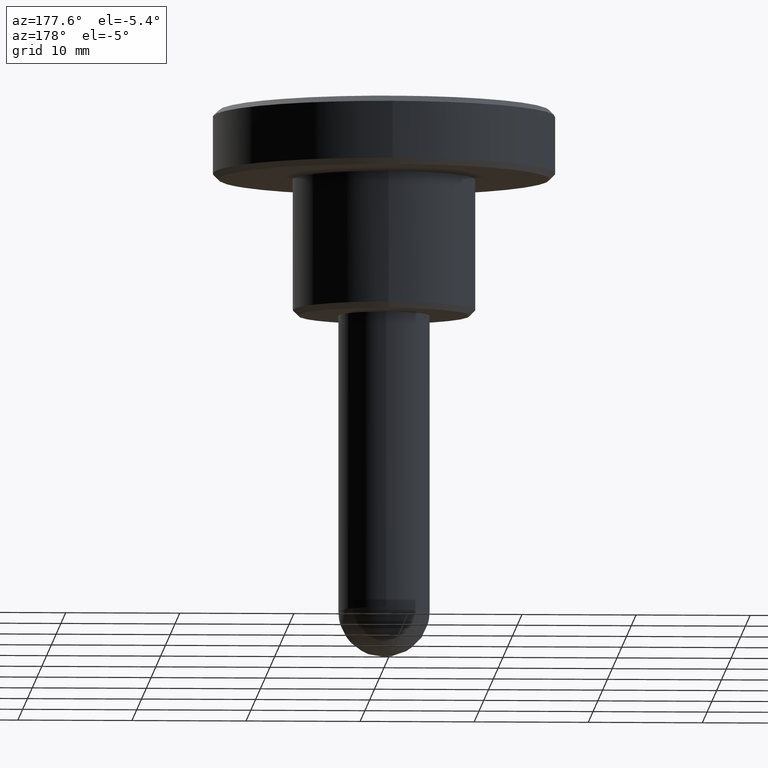
[diagram: clean part render]
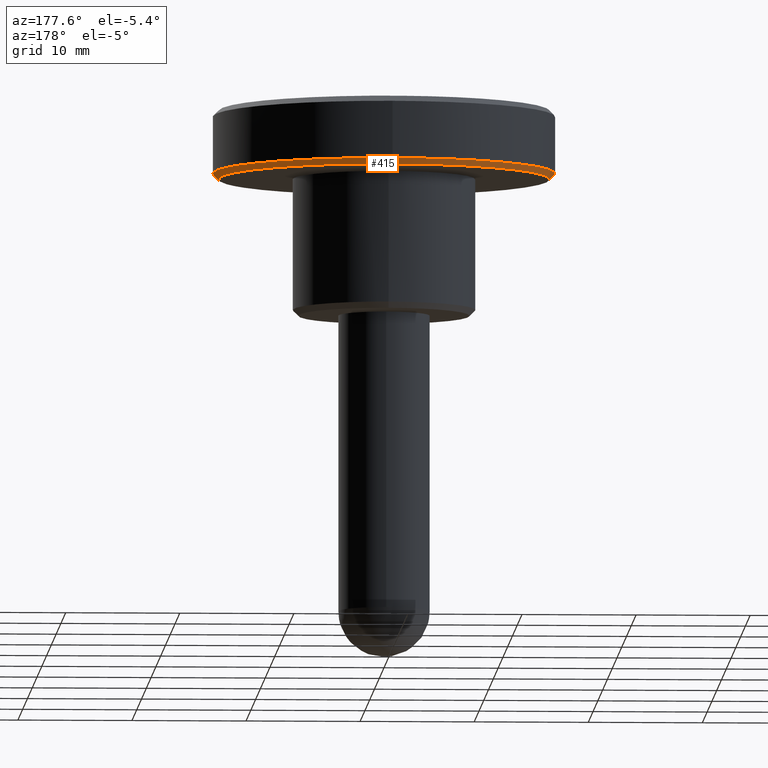
[diagram: same view with one face highlighted and labeled with its STEP entity id]
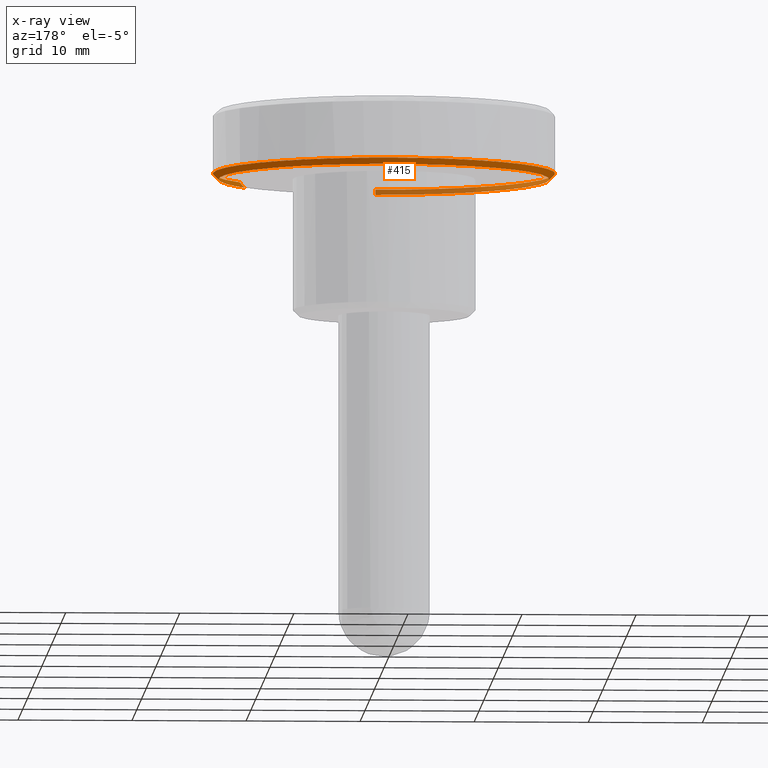
[diagram: x-ray of the same camera — body ghosted, the highlighted face saturated]
A machine part, auxiliary view. The second image highlights one B-rep face of the part: STEP entity #415.
The next image is the same camera in x-ray: the body ghosted, the highlighted face saturated — about 16% of this face is hidden behind the body in this view.
In plain terms, the highlighted face is a freeform B-spline surface patch.
Its self-contained STEP definition (entity closure, byte-faithful):
#260=CARTESIAN_POINT('',(11.863322807898196,-8.315601493915052,11.987500000000006));
#261=CARTESIAN_POINT('',(14.527452271915889,-4.514862863426098,11.987500000000006));
#262=CARTESIAN_POINT('',(14.486948360392180,0.126425683032692,11.987500000000001));
#263=CARTESIAN_POINT('',(14.360522677359487,14.613374043424866,11.987500000000001));
#264=CARTESIAN_POINT('',(-0.126425683032692,14.486948360392180,11.987500000000001));
#265=CARTESIAN_POINT('',(-14.613374043424866,14.360522677359487,11.987500000000001));
#266=CARTESIAN_POINT('',(-14.486948360392180,-0.126425683032692,11.987500000000001));
#267=CARTESIAN_POINT('',(-14.360522677359487,-14.613374043424866,11.987500000000001));
#268=CARTESIAN_POINT('',(0.126425683032692,-14.486948360392180,11.987500000000001));
#269=CARTESIAN_POINT('',(12.293483412731655,-8.617122764650015,12.512812500000011));
#270=CARTESIAN_POINT('',(15.054213429575364,-4.678570466390292,12.512812500000003));
#271=CARTESIAN_POINT('',(15.012240858101890,0.131009841211682,12.512812500000001));
#272=CARTESIAN_POINT('',(14.881231016890208,15.143250699313565,12.512812500000003));
#273=CARTESIAN_POINT('',(-0.131009841211682,15.012240858101890,12.512812500000001));
#274=CARTESIAN_POINT('',(-15.143250699313565,14.881231016890208,12.512812500000003));
#275=CARTESIAN_POINT('',(-15.012240858101890,-0.131009841211682,12.512812500000001));
#276=CARTESIAN_POINT('',(-14.881231016890208,-15.143250699313565,12.512812500000003));
#277=CARTESIAN_POINT('',(0.131009841211682,-15.012240858101890,12.512812500000001));
#285=(BOUNDED_SURFACE()B_SPLINE_SURFACE(2,1,((#260,#269),(#261,#270),(#262,#271),(#263,#272),(#264,#273),(#265,#274),(#266,#275),(#267,#276),(#268,#277)),.UNSPECIFIED.,.F.,.F.,.U.)B_SPLINE_SURFACE_WITH_KNOTS((3,2,2,2,3),(2,2),(0.0,9.949616874982967,34.823659062440392,59.697701249897797,84.571743437355209),(0.0,1.0),.UNSPECIFIED.)GEOMETRIC_REPRESENTATION_ITEM()RATIONAL_B_SPLINE_SURFACE(((0.859411254969543,0.859411254969543),(0.882842712474619,0.882842712474619),(1.0,1.0),(0.707106781186548,0.707106781186548),(1.0,1.0),(0.707106781186548,0.707106781186548),(1.0,1.0),(0.707106781186548,0.707106781186548),(1.0,1.0)))REPRESENTATION_ITEM('')SURFACE());
#286=CARTESIAN_POINT('',(14.500000000000000,0.0,12.0));
#287=VERTEX_POINT('',#286);
#288=CARTESIAN_POINT('',(11.873558634299050,-8.322776301083717,12.000000000000639));
#289=VERTEX_POINT('',#288);
#290=CARTESIAN_POINT('',(14.500000000000000,0.0,12.0));
#291=CARTESIAN_POINT('',(14.499999999999998,-4.575804806598277,11.999999999999998));
#292=CARTESIAN_POINT('',(11.873558634299053,-8.322776301083717,12.000000000000636));
#300=(BOUNDED_CURVE()B_SPLINE_CURVE(2,(#290,#291,#292),.UNSPECIFIED.,.F.,.U.)B_SPLINE_CURVE_WITH_KNOTS((3,3),(0.0,0.098673726203185),.UNSPECIFIED.)CURVE()GEOMETRIC_REPRESENTATION_ITEM()RATIONAL_B_SPLINE_CURVE((1.0,0.884396538880128,0.860049271925718))REPRESENTATION_ITEM(''));
#301=EDGE_CURVE('',#287,#289,#300,.T.);
#302=ORIENTED_EDGE('',*,*,#301,.F.);
#303=CARTESIAN_POINT('',(-14.500000000000000,0.0,12.0));
#304=VERTEX_POINT('',#303);
#305=CARTESIAN_POINT('',(-14.500000000000000,0.0,12.0));
#306=CARTESIAN_POINT('',(-14.500000000000000,14.500000000000000,12.0));
#307=CARTESIAN_POINT('',(0.0,14.500000000000000,12.0));
#308=CARTESIAN_POINT('',(14.500000000000000,14.500000000000000,12.0));
#309=CARTESIAN_POINT('',(14.500000000000000,0.0,12.0));
#317=(BOUNDED_CURVE()B_SPLINE_CURVE(2,(#305,#306,#307,#308,#309),.UNSPECIFIED.,.F.,.U.)B_SPLINE_CURVE_WITH_KNOTS((3,2,3),(0.500000000000000,0.750000000000000,1.0),.UNSPECIFIED.)CURVE()GEOMETRIC_REPRESENTATION_ITEM()RATIONAL_B_SPLINE_CURVE((1.0,0.707106781186548,1.0,0.707106781186548,1.0))REPRESENTATION_ITEM(''));
#318=EDGE_CURVE('',#304,#287,#317,.T.);
#319=ORIENTED_EDGE('',*,*,#318,.F.);
#320=CARTESIAN_POINT('',(0.126534764776619,-14.499447884436870,12.000000000006819));
#321=VERTEX_POINT('',#320);
#322=CARTESIAN_POINT('',(0.126534764776619,-14.499447884436869,12.000000000006825));
#323=CARTESIAN_POINT('',(0.063268586950314,-14.499999999999998,12.000000000000002));
#324=CARTESIAN_POINT('',(0.0,-14.500000000000000,12.0));
#325=CARTESIAN_POINT('',(-14.500000000000000,-14.500000000000000,12.0));
#326=CARTESIAN_POINT('',(-14.500000000000000,0.0,12.0));
#334=(BOUNDED_CURVE()B_SPLINE_CURVE(2,(#322,#323,#324,#325,#326),.UNSPECIFIED.,.F.,.U.)B_SPLINE_CURVE_WITH_KNOTS((3,2,3),(0.248460105663795,0.250000000000000,0.500000000000000),.UNSPECIFIED.)CURVE()GEOMETRIC_REPRESENTATION_ITEM()RATIONAL_B_SPLINE_CURVE((0.996414028097587,0.998195901564945,1.0,0.707106781186548,1.0))REPRESENTATION_ITEM(''));
#335=EDGE_CURVE('',#321,#304,#334,.T.);
#336=ORIENTED_EDGE('',*,*,#335,.F.);
#337=CARTESIAN_POINT('',(0.130898032475798,-14.999428845962610,12.500000000000011));
#338=VERTEX_POINT('',#337);
#339=CARTESIAN_POINT('',(0.126534764776619,-14.499447884436870,12.000000000006819));
#340=CARTESIAN_POINT('',(0.130898032475798,-14.999428845962610,12.500000000000011));
#341=QUASI_UNIFORM_CURVE('',1,(#339,#340),.UNSPECIFIED.,.F.,.U.);
#342=EDGE_CURVE('',#321,#338,#341,.T.);
#343=ORIENTED_EDGE('',*,*,#342,.T.);
#344=CARTESIAN_POINT('',(-15.0,0.0,12.500000000000000));
#345=VERTEX_POINT('',#344);
#346=CARTESIAN_POINT('',(-15.0,0.0,12.500000000000000));
#347=CARTESIAN_POINT('',(-14.999999999999996,-14.999999999999996,12.499999999999998));
#348=CARTESIAN_POINT('',(0.0,-15.0,12.500000000000000));
#349=CARTESIAN_POINT('',(0.065450262310713,-14.999999999999998,12.500000000000005));
#350=CARTESIAN_POINT('',(0.130898032475798,-14.999428845962608,12.500000000000016));
#358=(BOUNDED_CURVE()B_SPLINE_CURVE(2,(#346,#347,#348,#349,#350),.UNSPECIFIED.,.F.,.U.)B_SPLINE_CURVE_WITH_KNOTS((3,2,3),(0.0,0.250000000000000,0.251539894334992),.UNSPECIFIED.)CURVE()GEOMETRIC_REPRESENTATION_ITEM()RATIONAL_B_SPLINE_CURVE((1.0,0.707106781186547,1.0,0.998195901566367,0.996414028100395))REPRESENTATION_ITEM(''));
#359=EDGE_CURVE('',#345,#338,#358,.T.);
#360=ORIENTED_EDGE('',*,*,#359,.F.);
#361=CARTESIAN_POINT('',(-0.130883458394078,14.999428973134490,12.500000000000000));
#362=VERTEX_POINT('',#361);
#363=CARTESIAN_POINT('',(-0.130883458394078,14.999428973134487,12.499999999999995));
#364=CARTESIAN_POINT('',(-15.000000000000005,14.869682607482206,12.500000000000000));
#365=CARTESIAN_POINT('',(-15.0,0.0,12.500000000000000));
#373=(BOUNDED_CURVE()B_SPLINE_CURVE(2,(#363,#364,#365),.UNSPECIFIED.,.F.,.U.)B_SPLINE_CURVE_WITH_KNOTS((3,3),(0.751539723187156,1.0),.UNSPECIFIED.)CURVE()GEOMETRIC_REPRESENTATION_ITEM()RATIONAL_B_SPLINE_CURVE((0.996414424184712,0.708910679108019,1.0))REPRESENTATION_ITEM(''));
#374=EDGE_CURVE('',#362,#345,#373,.T.);
#375=ORIENTED_EDGE('',*,*,#374,.F.);
#376=CARTESIAN_POINT('',(15.0,0.0,12.500000000000000));
#377=VERTEX_POINT('',#376);
#378=CARTESIAN_POINT('',(15.0,0.0,12.500000000000000));
#379=CARTESIAN_POINT('',(14.999999999999996,14.999999999999996,12.499999999999998));
#380=CARTESIAN_POINT('',(0.0,15.0,12.500000000000000));
#381=CARTESIAN_POINT('',(-0.065442974853613,15.000000000000005,12.499999999999996));
#382=CARTESIAN_POINT('',(-0.130883458394078,14.999428973134487,12.499999999999995));
#390=(BOUNDED_CURVE()B_SPLINE_CURVE(2,(#378,#379,#380,#381,#382),.UNSPECIFIED.,.F.,.U.)B_SPLINE_CURVE_WITH_KNOTS((3,2,3),(0.500000000000000,0.750000000000000,0.751539723187156),.UNSPECIFIED.)CURVE()GEOMETRIC_REPRESENTATION_ITEM()RATIONAL_B_SPLINE_CURVE((1.0,0.707106781186547,1.0,0.998196102078528,0.996414424184712))REPRESENTATION_ITEM(''));
#391=EDGE_CURVE('',#377,#362,#390,.T.);
#392=ORIENTED_EDGE('',*,*,#391,.F.);
#393=CARTESIAN_POINT('',(12.282991690660831,-8.609768587317625,12.500000000000121));
#394=VERTEX_POINT('',#393);
#395=CARTESIAN_POINT('',(12.282991690660834,-8.609768587317625,12.500000000000121));
#396=CARTESIAN_POINT('',(14.999999999999995,-4.733591179226078,12.499999999999995));
#397=CARTESIAN_POINT('',(15.0,0.0,12.500000000000000));
#405=(BOUNDED_CURVE()B_SPLINE_CURVE(2,(#395,#396,#397),.UNSPECIFIED.,.F.,.U.)B_SPLINE_CURVE_WITH_KNOTS((3,3),(0.401326273797064,0.500000000000000),.UNSPECIFIED.)CURVE()GEOMETRIC_REPRESENTATION_ITEM()RATIONAL_B_SPLINE_CURVE((0.860049271925841,0.884396538880420,1.0))REPRESENTATION_ITEM(''));
#406=EDGE_CURVE('',#394,#377,#405,.T.);
#407=ORIENTED_EDGE('',*,*,#406,.F.);
#408=CARTESIAN_POINT('',(11.873558634299050,-8.322776301083717,12.000000000000639));
#409=CARTESIAN_POINT('',(12.282991690660831,-8.609768587317625,12.500000000000121));
#410=QUASI_UNIFORM_CURVE('',1,(#408,#409),.UNSPECIFIED.,.F.,.U.);
#411=EDGE_CURVE('',#289,#394,#410,.T.);
#412=ORIENTED_EDGE('',*,*,#411,.F.);
#413=EDGE_LOOP('',(#302,#319,#336,#343,#360,#375,#392,#407,#412));
#414=FACE_OUTER_BOUND('',#413,.T.);
#415=ADVANCED_FACE('',(#414),#285,.T.);